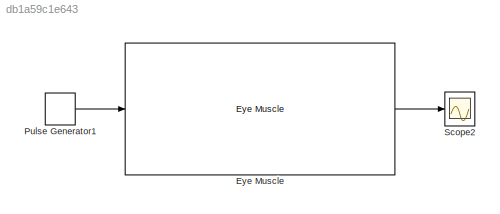
MODEL slx_db1a59c1e643
KIND model
CONFIG AbsTol = auto
CONFIG EnableMultiTasking = off
CONFIG FixedStep = auto
CONFIG MaxStep = auto
CONFIG MinStep = auto
CONFIG RelTol = 1e-3
CONFIG SampleTimeConstraint = Unconstrained
CONFIG SolverName = VariableStepAuto
CONFIG StartTime = 0.0
CONFIG StopTime = 0.2
BLOCK [Reference] Eye Muscle  REF=NeuroModelerLibrary/Actuators/Eye Muscle
  Ports = [1, 1]
  SourceBlock = NeuroModelerLibrary/Actuators/Eye Muscle
  SourceType = SubSystem
BLOCK [DiscretePulseGenerator] Pulse Generator1
  Period = 0.01
  Ports = [0, 1]
  PulseType = Time based
  PulseWidth = 0.0001
  SampleTime = 0.001
BLOCK [Scope] Scope2
  Floating = off
  NumInputPorts = 1
  Ports = [1]
  ScopeSpecificationString = Simulink.scopes.TimeScopeBlockCfg('CurrentConfiguration', extmgr.ConfigurationSet(extmgr.Configuration('Core','General UI',true),extmgr.Configuration('Core','Source UI',true),extmgr.Configuration('Sources','WiredSimulink',true,'DataLoggingVariableName','ScopeData2'),extmgr.Configuration('Visuals','Time Domain',true,'TimeAxisLabels','All','SerializedDisplays',{struct('MinYLimReal','-0.0000003','Max...<+1484ch>
LINE Eye Muscle:1 -> Scope2:1
LINE Pulse Generator1:1 -> Eye Muscle:1
